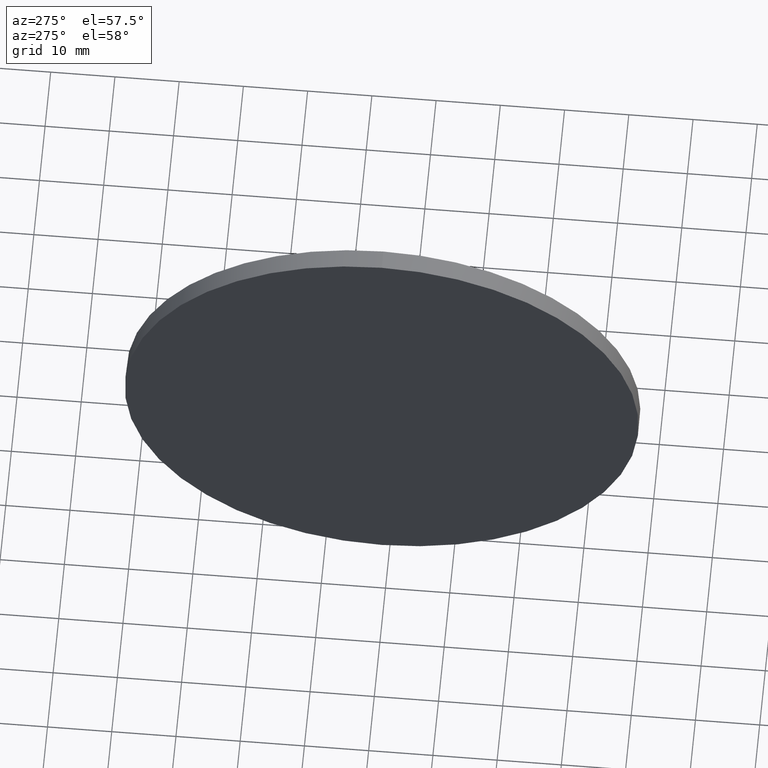
[diagram: clean part render]
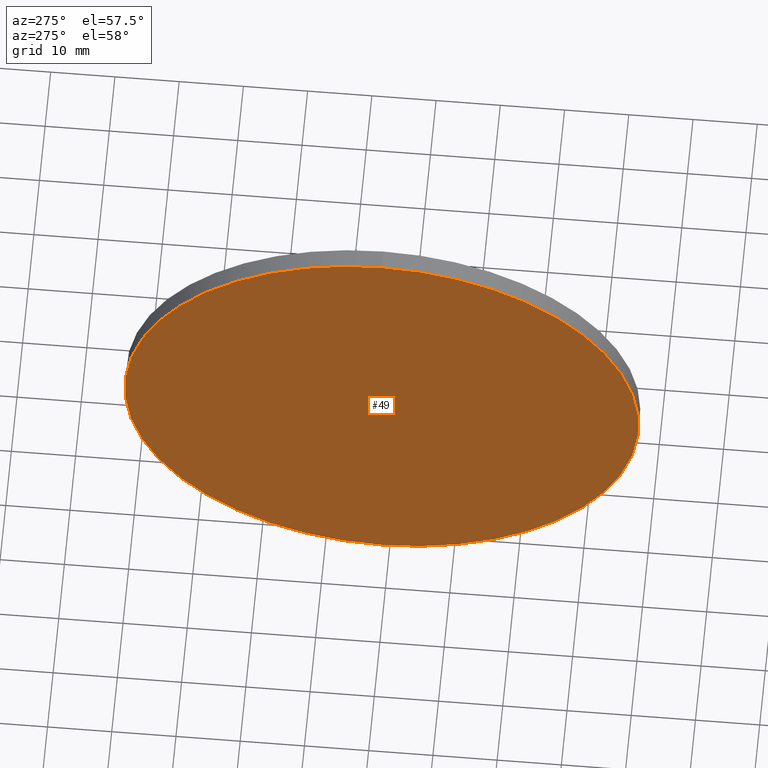
[diagram: same view with one face highlighted and labeled with its STEP entity id]
A machine part, auxiliary view. The second image highlights one B-rep face of the part: STEP entity #49.
In plain terms, the highlighted planar face has unit normal (1, 0, 0).
Its self-contained STEP definition (entity closure, byte-faithful):
#1 = CARTESIAN_POINT ( 'NONE',  ( 786.7768331134177500, 121.1916296255188900, 0.0000000000000000000 ) ) ;
#2 = DIRECTION ( 'NONE',  ( 0.0000000000000000000, 0.0000000000000000000, 1.000000000000000000 ) ) ;
#3 = DIRECTION ( 'NONE',  ( 0.0000000000000000000, 0.0000000000000000000, -1.000000000000000000 ) ) ;
#16 = DIRECTION ( 'NONE',  ( -1.000000000000000000, -0.0000000000000000000, -0.0000000000000000000 ) ) ;
#20 = VERTEX_POINT ( 'NONE', #88 ) ;
#21 = DIRECTION ( 'NONE',  ( 0.0000000000000000000, 0.0000000000000000000, 1.000000000000000000 ) ) ;
#31 = ORIENTED_EDGE ( 'NONE', *, *, #32, .T. ) ;
#32 = EDGE_CURVE ( 'NONE', #116, #20, #99, .T. ) ;
#33 = DIRECTION ( 'NONE',  ( -1.000000000000000000, -0.0000000000000000000, -0.0000000000000000000 ) ) ;
#49 = ADVANCED_FACE ( 'NONE', ( #126 ), #58, .F. ) ;
#50 = AXIS2_PLACEMENT_3D ( 'NONE', #173, #87, #3 ) ;
#58 = PLANE ( 'NONE',  #50 ) ;
#61 = CARTESIAN_POINT ( 'NONE',  ( 786.7768331134177500, 121.1916296255188900, -40.00000000000000700 ) ) ;
#87 = DIRECTION ( 'NONE',  ( 1.000000000000000000, 0.0000000000000000000, 0.0000000000000000000 ) ) ;
#88 = CARTESIAN_POINT ( 'NONE',  ( 786.7768331134177500, 121.1916296255188900, 40.00000000000000700 ) ) ;
#99 = CIRCLE ( 'NONE', #182, 40.00000000000000700 ) ;
#106 = CIRCLE ( 'NONE', #112, 40.00000000000000700 ) ;
#112 = AXIS2_PLACEMENT_3D ( 'NONE', #130, #33, #21 ) ;
#115 = EDGE_CURVE ( 'NONE', #20, #116, #106, .T. ) ;
#116 = VERTEX_POINT ( 'NONE', #61 ) ;
#126 = FACE_OUTER_BOUND ( 'NONE', #140, .T. ) ;
#130 = CARTESIAN_POINT ( 'NONE',  ( 786.7768331134177500, 121.1916296255188900, 0.0000000000000000000 ) ) ;
#140 = EDGE_LOOP ( 'NONE', ( #180, #31 ) ) ;
#173 = CARTESIAN_POINT ( 'NONE',  ( 786.7768331134177500, 121.1916296255188900, 0.0000000000000000000 ) ) ;
#180 = ORIENTED_EDGE ( 'NONE', *, *, #115, .T. ) ;
#182 = AXIS2_PLACEMENT_3D ( 'NONE', #1, #16, #2 ) ;